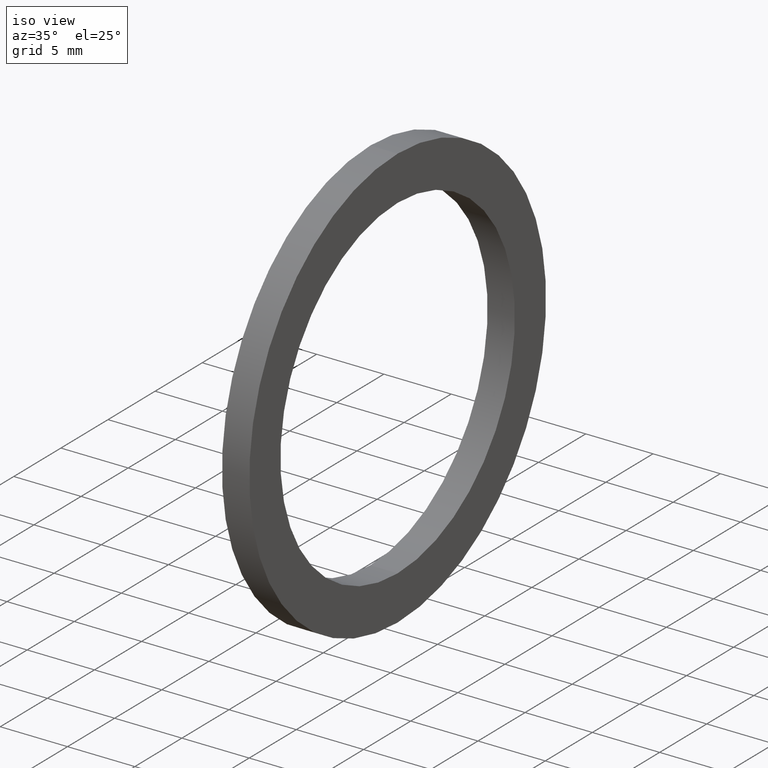
[diagram: clean part render]
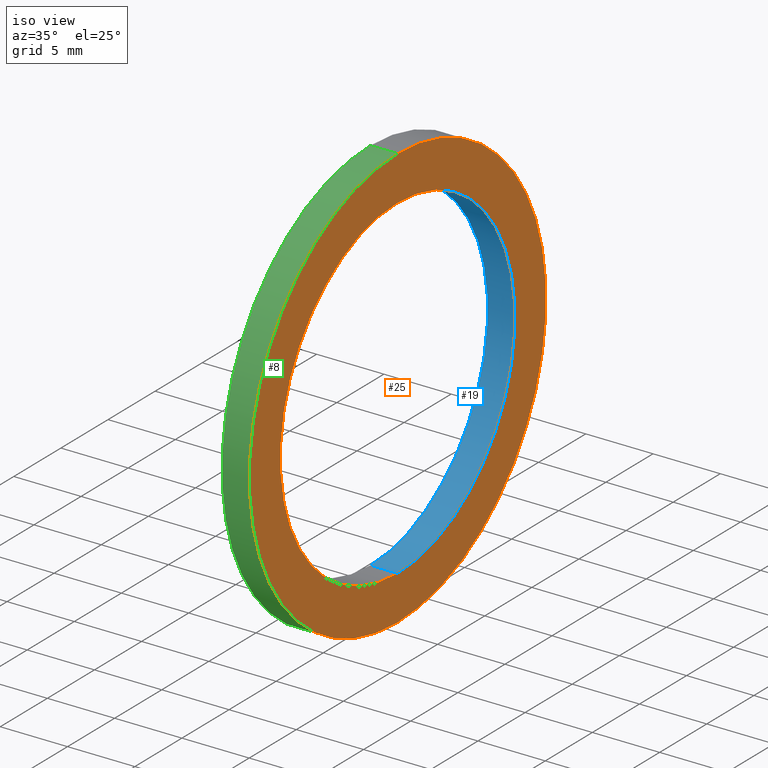
[diagram: same view with three faces highlighted in distinct colors, each labeled with its STEP entity id]
A machine part, iso view with three faces highlighted in distinct colors.
Their STEP definitions:

[orange] entity #25 — the highlighted planar face has unit normal (1, 0, 0).
#5 = EDGE_CURVE ( 'NONE', #228, #227, #65, .T. ) ;
#16 = EDGE_LOOP ( 'NONE', ( #17, #18 ) ) ;
#17 = ORIENTED_EDGE ( 'NONE', *, *, #226, .F. ) ;
#18 = ORIENTED_EDGE ( 'NONE', *, *, #5, .F. ) ;
#25 = ADVANCED_FACE ( 'NONE', ( #73, #77 ), #78, .T. ) ;
#26 = EDGE_LOOP ( 'NONE', ( #27, #29 ) ) ;
#27 = ORIENTED_EDGE ( 'NONE', *, *, #28, .T. ) ;
#28 = EDGE_CURVE ( 'NONE', #244, #243, #71, .T. ) ;
#29 = ORIENTED_EDGE ( 'NONE', *, *, #242, .T. ) ;
#61 = DIRECTION ( 'NONE',  ( 0.0000000000000000000, 0.0000000000000000000, 1.000000000000000000 ) ) ;
#62 = DIRECTION ( 'NONE',  ( -1.000000000000000000, 0.0000000000000000000, 0.0000000000000000000 ) ) ;
#63 = CARTESIAN_POINT ( 'NONE',  ( 0.07999999999999996000, 0.0000000000000000000, 0.0000000000000000000 ) ) ;
#64 = AXIS2_PLACEMENT_3D ( 'NONE', #63, #62, #61 ) ;
#65 = CIRCLE ( 'NONE', #64, 0.6200000000000000000 ) ;
#68 = DIRECTION ( 'NONE',  ( 0.0000000000000000000, 0.0000000000000000000, 1.000000000000000000 ) ) ;
#69 = DIRECTION ( 'NONE',  ( -1.000000000000000000, 0.0000000000000000000, 0.0000000000000000000 ) ) ;
#70 = AXIS2_PLACEMENT_3D ( 'NONE', #75, #69, #68 ) ;
#71 = CIRCLE ( 'NONE', #70, 0.4899999999999999900 ) ;
#72 = CARTESIAN_POINT ( 'NONE',  ( 0.08000000000000002900, -0.4899999999999999900, 0.0000000000000000000 ) ) ;
#73 = FACE_BOUND ( 'NONE', #26, .T. ) ;
#74 = AXIS2_PLACEMENT_3D ( 'NONE', #72, #79, #76 ) ;
#75 = CARTESIAN_POINT ( 'NONE',  ( 0.07999999999999996000, 0.0000000000000000000, 0.0000000000000000000 ) ) ;
#76 = DIRECTION ( 'NONE',  ( 0.0000000000000000000, 0.0000000000000000000, -1.000000000000000000 ) ) ;
#77 = FACE_OUTER_BOUND ( 'NONE', #16, .T. ) ;
#78 = PLANE ( 'NONE',  #74 ) ;
#79 = DIRECTION ( 'NONE',  ( 1.000000000000000000, 0.0000000000000000000, 0.0000000000000000000 ) ) ;
#82 = CARTESIAN_POINT ( 'NONE',  ( 0.07999999999999996000, 0.0000000000000000000, 0.0000000000000000000 ) ) ;
#84 = DIRECTION ( 'NONE',  ( -1.000000000000000000, 0.0000000000000000000, 0.0000000000000000000 ) ) ;
#85 = DIRECTION ( 'NONE',  ( 0.0000000000000000000, 0.0000000000000000000, 1.000000000000000000 ) ) ;
#87 = AXIS2_PLACEMENT_3D ( 'NONE', #82, #84, #85 ) ;
#88 = CIRCLE ( 'NONE', #87, 0.6200000000000000000 ) ;
#103 = DIRECTION ( 'NONE',  ( -1.000000000000000000, 0.0000000000000000000, 0.0000000000000000000 ) ) ;
#104 = AXIS2_PLACEMENT_3D ( 'NONE', #126, #103, #132 ) ;
#105 = CIRCLE ( 'NONE', #104, 0.4899999999999999900 ) ;
#126 = CARTESIAN_POINT ( 'NONE',  ( 0.07999999999999996000, 0.0000000000000000000, 0.0000000000000000000 ) ) ;
#130 = CARTESIAN_POINT ( 'NONE',  ( 0.07999999999999996000, 0.0000000000000000000, 0.4899999999999999900 ) ) ;
#131 = CARTESIAN_POINT ( 'NONE',  ( 0.07999999999999996000, 6.000769315822029800E-017, -0.4899999999999999900 ) ) ;
#132 = DIRECTION ( 'NONE',  ( 0.0000000000000000000, 0.0000000000000000000, 1.000000000000000000 ) ) ;
#138 = CARTESIAN_POINT ( 'NONE',  ( 0.07999999999999996000, 7.592810154713589100E-017, -0.6200000000000000000 ) ) ;
#143 = CARTESIAN_POINT ( 'NONE',  ( 0.07999999999999996000, 0.0000000000000000000, 0.6200000000000000000 ) ) ;
#226 = EDGE_CURVE ( 'NONE', #227, #228, #88, .T. ) ;
#227 = VERTEX_POINT ( 'NONE', #143 ) ;
#228 = VERTEX_POINT ( 'NONE', #138 ) ;
#242 = EDGE_CURVE ( 'NONE', #243, #244, #105, .T. ) ;
#243 = VERTEX_POINT ( 'NONE', #131 ) ;
#244 = VERTEX_POINT ( 'NONE', #130 ) ;

[blue] entity #19 — the highlighted cylindrical surface (partial cylindrical patch) has radius 12.446 mm, axis along (-1, 0, 0).
#9 = EDGE_CURVE ( 'NONE', #250, #247, #47, .T. ) ;
#19 = ADVANCED_FACE ( 'NONE', ( #57 ), #32, .F. ) ;
#20 = EDGE_LOOP ( 'NONE', ( #21, #33, #37, #38 ) ) ;
#21 = ORIENTED_EDGE ( 'NONE', *, *, #246, .F. ) ;
#28 = EDGE_CURVE ( 'NONE', #244, #243, #71, .T. ) ;
#31 = AXIS2_PLACEMENT_3D ( 'NONE', #52, #80, #67 ) ;
#32 = CYLINDRICAL_SURFACE ( 'NONE', #31, 0.4899999999999999900 ) ;
#33 = ORIENTED_EDGE ( 'NONE', *, *, #28, .F. ) ;
#37 = ORIENTED_EDGE ( 'NONE', *, *, #252, .T. ) ;
#38 = ORIENTED_EDGE ( 'NONE', *, *, #9, .T. ) ;
#43 = DIRECTION ( 'NONE',  ( 0.0000000000000000000, 0.0000000000000000000, 1.000000000000000000 ) ) ;
#44 = DIRECTION ( 'NONE',  ( -1.000000000000000000, 0.0000000000000000000, 0.0000000000000000000 ) ) ;
#45 = CARTESIAN_POINT ( 'NONE',  ( 0.0000000000000000000, 0.0000000000000000000, 0.0000000000000000000 ) ) ;
#46 = AXIS2_PLACEMENT_3D ( 'NONE', #45, #44, #43 ) ;
#47 = CIRCLE ( 'NONE', #46, 0.4899999999999999900 ) ;
#52 = CARTESIAN_POINT ( 'NONE',  ( -1.721125226614714300, 0.0000000000000000000, 0.0000000000000000000 ) ) ;
#57 = FACE_OUTER_BOUND ( 'NONE', #20, .T. ) ;
#67 = DIRECTION ( 'NONE',  ( 0.0000000000000000000, 0.0000000000000000000, 1.000000000000000000 ) ) ;
#68 = DIRECTION ( 'NONE',  ( 0.0000000000000000000, 0.0000000000000000000, 1.000000000000000000 ) ) ;
#69 = DIRECTION ( 'NONE',  ( -1.000000000000000000, 0.0000000000000000000, 0.0000000000000000000 ) ) ;
#70 = AXIS2_PLACEMENT_3D ( 'NONE', #75, #69, #68 ) ;
#71 = CIRCLE ( 'NONE', #70, 0.4899999999999999900 ) ;
#75 = CARTESIAN_POINT ( 'NONE',  ( 0.07999999999999996000, 0.0000000000000000000, 0.0000000000000000000 ) ) ;
#80 = DIRECTION ( 'NONE',  ( -1.000000000000000000, 0.0000000000000000000, 0.0000000000000000000 ) ) ;
#116 = LINE ( 'NONE', #124, #123 ) ;
#117 = CARTESIAN_POINT ( 'NONE',  ( 0.0000000000000000000, 0.0000000000000000000, 0.4899999999999999900 ) ) ;
#122 = DIRECTION ( 'NONE',  ( -1.000000000000000000, 0.0000000000000000000, 0.0000000000000000000 ) ) ;
#123 = VECTOR ( 'NONE', #122, 39.37007874015748100 ) ;
#124 = CARTESIAN_POINT ( 'NONE',  ( -1.721125226614714300, 0.0000000000000000000, 0.4899999999999999900 ) ) ;
#130 = CARTESIAN_POINT ( 'NONE',  ( 0.07999999999999996000, 0.0000000000000000000, 0.4899999999999999900 ) ) ;
#131 = CARTESIAN_POINT ( 'NONE',  ( 0.07999999999999996000, 6.000769315822029800E-017, -0.4899999999999999900 ) ) ;
#144 = VECTOR ( 'NONE', #151, 39.37007874015748100 ) ;
#145 = CARTESIAN_POINT ( 'NONE',  ( -1.721125226614714300, 6.000769315822029800E-017, -0.4899999999999999900 ) ) ;
#146 = LINE ( 'NONE', #145, #144 ) ;
#150 = CARTESIAN_POINT ( 'NONE',  ( 0.0000000000000000000, 6.000769315822029800E-017, -0.4899999999999999900 ) ) ;
#151 = DIRECTION ( 'NONE',  ( -1.000000000000000000, 0.0000000000000000000, 0.0000000000000000000 ) ) ;
#243 = VERTEX_POINT ( 'NONE', #131 ) ;
#244 = VERTEX_POINT ( 'NONE', #130 ) ;
#246 = EDGE_CURVE ( 'NONE', #243, #247, #146, .T. ) ;
#247 = VERTEX_POINT ( 'NONE', #150 ) ;
#250 = VERTEX_POINT ( 'NONE', #117 ) ;
#252 = EDGE_CURVE ( 'NONE', #244, #250, #116, .T. ) ;

[green] entity #8 — the highlighted cylindrical surface (partial cylindrical patch) has radius 15.748 mm, axis along (-1, 0, 0).
#4 = ORIENTED_EDGE ( 'NONE', *, *, #5, .T. ) ;
#5 = EDGE_CURVE ( 'NONE', #228, #227, #65, .T. ) ;
#6 = EDGE_LOOP ( 'NONE', ( #7, #4, #23, #24 ) ) ;
#7 = ORIENTED_EDGE ( 'NONE', *, *, #230, .F. ) ;
#8 = ADVANCED_FACE ( 'NONE', ( #66 ), #59, .T. ) ;
#14 = EDGE_CURVE ( 'NONE', #231, #234, #56, .T. ) ;
#23 = ORIENTED_EDGE ( 'NONE', *, *, #236, .T. ) ;
#24 = ORIENTED_EDGE ( 'NONE', *, *, #14, .F. ) ;
#48 = CARTESIAN_POINT ( 'NONE',  ( 0.0000000000000000000, 0.0000000000000000000, 0.0000000000000000000 ) ) ;
#49 = DIRECTION ( 'NONE',  ( 0.0000000000000000000, 0.0000000000000000000, 1.000000000000000000 ) ) ;
#50 = DIRECTION ( 'NONE',  ( -1.000000000000000000, 0.0000000000000000000, 0.0000000000000000000 ) ) ;
#51 = AXIS2_PLACEMENT_3D ( 'NONE', #60, #50, #49 ) ;
#53 = DIRECTION ( 'NONE',  ( 0.0000000000000000000, 0.0000000000000000000, 1.000000000000000000 ) ) ;
#54 = DIRECTION ( 'NONE',  ( -1.000000000000000000, 0.0000000000000000000, 0.0000000000000000000 ) ) ;
#55 = AXIS2_PLACEMENT_3D ( 'NONE', #48, #54, #53 ) ;
#56 = CIRCLE ( 'NONE', #55, 0.6200000000000000000 ) ;
#59 = CYLINDRICAL_SURFACE ( 'NONE', #51, 0.6200000000000000000 ) ;
#60 = CARTESIAN_POINT ( 'NONE',  ( -1.721125226614714300, 0.0000000000000000000, 0.0000000000000000000 ) ) ;
#61 = DIRECTION ( 'NONE',  ( 0.0000000000000000000, 0.0000000000000000000, 1.000000000000000000 ) ) ;
#62 = DIRECTION ( 'NONE',  ( -1.000000000000000000, 0.0000000000000000000, 0.0000000000000000000 ) ) ;
#63 = CARTESIAN_POINT ( 'NONE',  ( 0.07999999999999996000, 0.0000000000000000000, 0.0000000000000000000 ) ) ;
#64 = AXIS2_PLACEMENT_3D ( 'NONE', #63, #62, #61 ) ;
#65 = CIRCLE ( 'NONE', #64, 0.6200000000000000000 ) ;
#66 = FACE_OUTER_BOUND ( 'NONE', #6, .T. ) ;
#101 = CARTESIAN_POINT ( 'NONE',  ( 0.0000000000000000000, 7.592810154713589100E-017, -0.6200000000000000000 ) ) ;
#106 = VECTOR ( 'NONE', #152, 39.37007874015748100 ) ;
#109 = LINE ( 'NONE', #153, #106 ) ;
#110 = CARTESIAN_POINT ( 'NONE',  ( -1.721125226614714300, 0.0000000000000000000, 0.6200000000000000000 ) ) ;
#111 = LINE ( 'NONE', #110, #142 ) ;
#138 = CARTESIAN_POINT ( 'NONE',  ( 0.07999999999999996000, 7.592810154713589100E-017, -0.6200000000000000000 ) ) ;
#139 = CARTESIAN_POINT ( 'NONE',  ( 0.0000000000000000000, 0.0000000000000000000, 0.6200000000000000000 ) ) ;
#141 = DIRECTION ( 'NONE',  ( -1.000000000000000000, 0.0000000000000000000, 0.0000000000000000000 ) ) ;
#142 = VECTOR ( 'NONE', #141, 39.37007874015748100 ) ;
#143 = CARTESIAN_POINT ( 'NONE',  ( 0.07999999999999996000, 0.0000000000000000000, 0.6200000000000000000 ) ) ;
#152 = DIRECTION ( 'NONE',  ( -1.000000000000000000, 0.0000000000000000000, 0.0000000000000000000 ) ) ;
#153 = CARTESIAN_POINT ( 'NONE',  ( -1.721125226614714300, 7.592810154713589100E-017, -0.6200000000000000000 ) ) ;
#227 = VERTEX_POINT ( 'NONE', #143 ) ;
#228 = VERTEX_POINT ( 'NONE', #138 ) ;
#230 = EDGE_CURVE ( 'NONE', #228, #231, #109, .T. ) ;
#231 = VERTEX_POINT ( 'NONE', #101 ) ;
#234 = VERTEX_POINT ( 'NONE', #139 ) ;
#236 = EDGE_CURVE ( 'NONE', #227, #234, #111, .T. ) ;